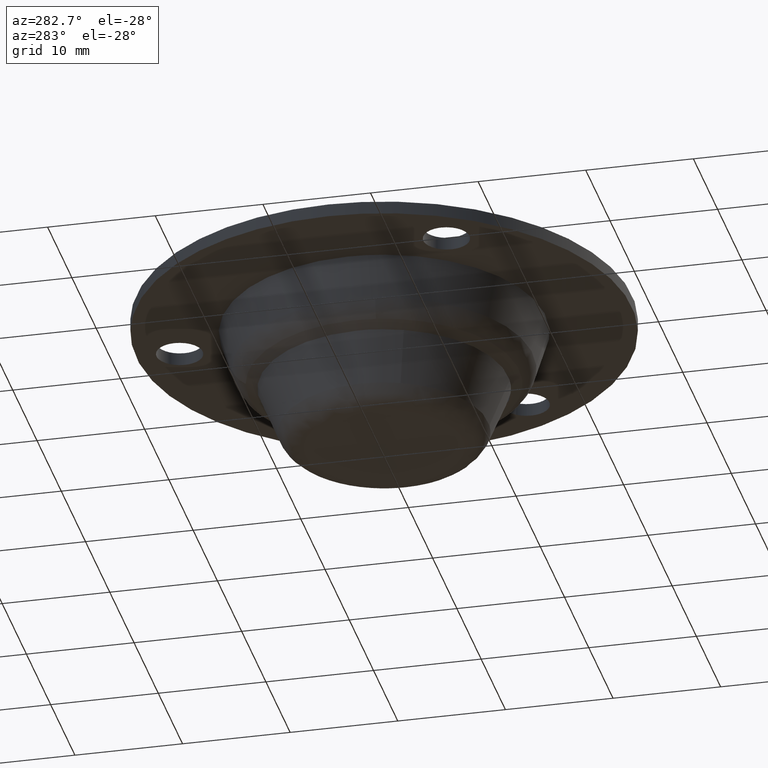
[diagram: clean part render]
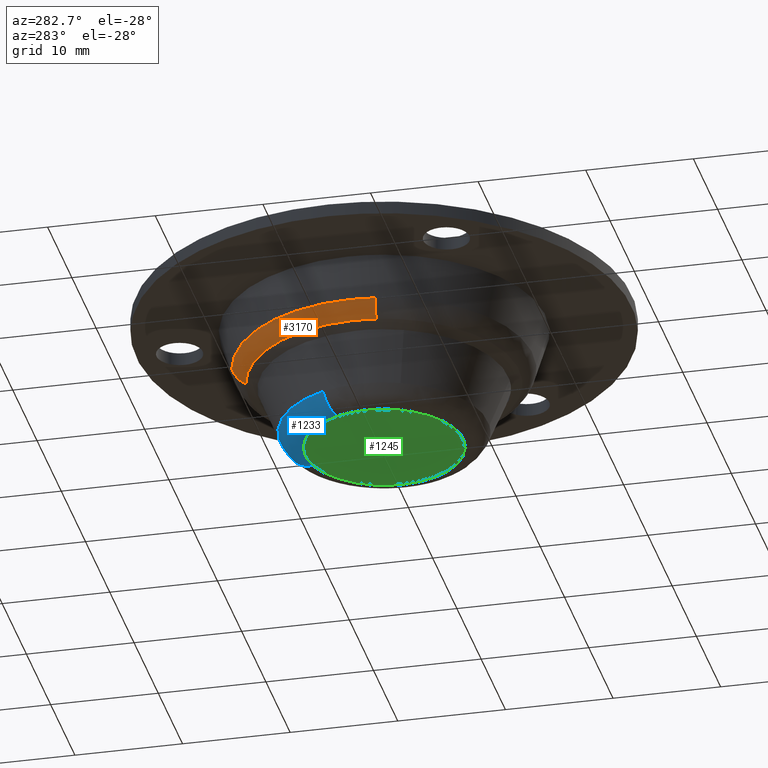
[diagram: same view with three faces highlighted in distinct colors, each labeled with its STEP entity id]
A machine part, auxiliary view with three faces highlighted in distinct colors.
Their STEP definitions:

[orange] entity #3170 — the highlighted face is a freeform B-spline surface patch.
#2086=CARTESIAN_POINT('',(-3.023204054250408,13.482350072375990,8.014868798896041));
#2087=VERTEX_POINT('',#2086);
#2103=CARTESIAN_POINT('',(-13.817146940353620,0.0,8.014871502011490));
#2104=VERTEX_POINT('',#2103);
#2105=CARTESIAN_POINT('',(-13.817146940353620,0.0,8.014871502011490));
#2106=CARTESIAN_POINT('',(-13.817146847939487,11.061979320678134,8.014870150453767));
#2107=CARTESIAN_POINT('',(-3.023204054250407,13.482350072375990,8.014868798896041));
#2115=(BOUNDED_CURVE()B_SPLINE_CURVE(2,(#2105,#2106,#2107),.UNSPECIFIED.,.F.,.U.)B_SPLINE_CURVE_WITH_KNOTS((3,3),(0.0,0.212563972159840),.UNSPECIFIED.)CURVE()GEOMETRIC_REPRESENTATION_ITEM()RATIONAL_B_SPLINE_CURVE((1.0,0.750965815961325,0.925417194825414))REPRESENTATION_ITEM(''));
#2116=EDGE_CURVE('',#2104,#2087,#2115,.T.);
#2118=CARTESIAN_POINT('',(-13.633186390799150,-2.247170324118301,8.014871045845393));
#2119=VERTEX_POINT('',#2118);
#2120=CARTESIAN_POINT('',(-13.633186390799150,-2.247170324118301,8.014871045845393));
#2121=CARTESIAN_POINT('',(-13.817146940353620,-1.131114961520534,8.014871502011491));
#2122=CARTESIAN_POINT('',(-13.817146940353620,0.0,8.014871502011490));
#2130=(BOUNDED_CURVE()B_SPLINE_CURVE(2,(#2120,#2121,#2122),.UNSPECIFIED.,.F.,.U.)B_SPLINE_CURVE_WITH_KNOTS((3,3),(0.972006246325692,1.0),.UNSPECIFIED.)CURVE()GEOMETRIC_REPRESENTATION_ITEM()RATIONAL_B_SPLINE_CURVE((0.941751382001029,0.967203277518644,1.0))REPRESENTATION_ITEM(''));
#2131=EDGE_CURVE('',#2119,#2104,#2130,.T.);
#2373=CARTESIAN_POINT('',(-12.381903161650060,-2.040930695166651,6.524491011444682));
#2374=VERTEX_POINT('',#2373);
#2390=CARTESIAN_POINT('',(-12.548980999999999,0.0,6.524490999999901));
#2391=VERTEX_POINT('',#2390);
#2392=CARTESIAN_POINT('',(-12.381903161650058,-2.040930695166651,6.524491011444683));
#2393=CARTESIAN_POINT('',(-12.548980999999998,-1.027304140377461,6.524490999999900));
#2394=CARTESIAN_POINT('',(-12.548980999999999,0.0,6.524490999999901));
#2402=(BOUNDED_CURVE()B_SPLINE_CURVE(2,(#2392,#2393,#2394),.UNSPECIFIED.,.F.,.U.)B_SPLINE_CURVE_WITH_KNOTS((3,3),(0.972006108796968,1.0),.UNSPECIFIED.)CURVE()GEOMETRIC_REPRESENTATION_ITEM()RATIONAL_B_SPLINE_CURVE((0.941751131919225,0.967203116393722,1.0))REPRESENTATION_ITEM(''));
#2403=EDGE_CURVE('',#2374,#2391,#2402,.T.);
#2405=CARTESIAN_POINT('',(-2.745739527794939,12.244910716029899,6.524491011267107));
#2406=VERTEX_POINT('',#2405);
#2407=CARTESIAN_POINT('',(-12.548980999999999,0.0,6.524490999999901));
#2408=CARTESIAN_POINT('',(-12.548981000000001,10.046679290348280,6.524490999999902));
#2409=CARTESIAN_POINT('',(-2.745739527794939,12.244910716029901,6.524491011267107));
#2417=(BOUNDED_CURVE()B_SPLINE_CURVE(2,(#2407,#2408,#2409),.UNSPECIFIED.,.F.,.U.)B_SPLINE_CURVE_WITH_KNOTS((3,3),(0.0,0.212563823276980),.UNSPECIFIED.)CURVE()GEOMETRIC_REPRESENTATION_ITEM()RATIONAL_B_SPLINE_CURVE((1.0,0.750965990388446,0.925416950449116))REPRESENTATION_ITEM(''));
#2418=EDGE_CURVE('',#2391,#2406,#2417,.T.);
#3106=CARTESIAN_POINT('',(-13.633186390799155,-2.247170324118301,8.014871045845393));
#3107=CARTESIAN_POINT('',(-13.320260640932085,-2.195596011071832,7.000000250884765));
#3108=CARTESIAN_POINT('',(-12.381903161650060,-2.040930695166652,6.524491011444682));
#3116=(BOUNDED_CURVE()B_SPLINE_CURVE(2,(#3106,#3107,#3108),.UNSPECIFIED.,.F.,.U.)B_SPLINE_CURVE_WITH_KNOTS((3,3),(-1.576752214041713,-0.437749465809462),.UNSPECIFIED.)CURVE()GEOMETRIC_REPRESENTATION_ITEM()RATIONAL_B_SPLINE_CURVE((0.924225227446553,0.849635239093327,0.922349759776267))REPRESENTATION_ITEM(''));
#3117=EDGE_CURVE('',#2119,#2374,#3116,.T.);
#3123=CARTESIAN_POINT('',(-3.023204054250408,13.482350072375995,8.014868798896043));
#3124=CARTESIAN_POINT('',(-2.953817664845392,13.172885523791948,6.999999628913513));
#3125=CARTESIAN_POINT('',(-2.745739527794939,12.244910716029903,6.524491011267107));
#3133=(BOUNDED_CURVE()B_SPLINE_CURVE(2,(#3123,#3124,#3125),.UNSPECIFIED.,.F.,.U.)B_SPLINE_CURVE_WITH_KNOTS((3,3),(-1.576750842456388,-0.437749465347705),.UNSPECIFIED.)CURVE()GEOMETRIC_REPRESENTATION_ITEM()RATIONAL_B_SPLINE_CURVE((0.903435345469025,0.830523460337182,0.901602240600924))REPRESENTATION_ITEM(''));
#3134=EDGE_CURVE('',#2087,#2406,#3133,.T.);
#3139=CARTESIAN_POINT('',(-13.644774304818911,-2.344071563469661,8.108229792706380));
#3140=CARTESIAN_POINT('',(-13.652384381035802,-2.297902809676140,8.108229792706382));
#3141=CARTESIAN_POINT('',(-15.786326064103017,10.648278722193881,8.108229792706380));
#3142=CARTESIAN_POINT('',(-2.982316484019872,13.519387873868526,8.108229792706378));
#3143=CARTESIAN_POINT('',(-2.935590201829028,13.529865549285969,8.108229792706378));
#3144=CARTESIAN_POINT('',(-13.341255709591712,-2.291929307968588,6.968892101768585));
#3145=CARTESIAN_POINT('',(-13.348696504910931,-2.246787546266087,6.968892101768585));
#3146=CARTESIAN_POINT('',(-15.435170126764941,10.411415104874351,6.968892101768584));
#3147=CARTESIAN_POINT('',(-2.915976910383029,13.218658413333660,6.968892101768582));
#3148=CARTESIAN_POINT('',(-2.870290022117942,13.228903020086644,6.968892101768583));
#3149=CARTESIAN_POINT('',(-12.281365882328092,-2.109848054809130,6.482619191007780));
#3150=CARTESIAN_POINT('',(-12.288215547139268,-2.068292559276375,6.482619191007781));
#3151=CARTESIAN_POINT('',(-14.208930246835223,9.584285095729749,6.482619191007779));
#3152=CARTESIAN_POINT('',(-2.684318486983758,12.168508270997950,6.482619191007779));
#3153=CARTESIAN_POINT('',(-2.642261172213517,12.177938999753376,6.482619191007778));
#3161=(BOUNDED_SURFACE()B_SPLINE_SURFACE(2,2,((#3139,#3144,#3149),(#3140,#3145,#3150),(#3141,#3146,#3151),(#3142,#3147,#3152),(#3143,#3148,#3153)),.UNSPECIFIED.,.F.,.F.,.U.)B_SPLINE_SURFACE_WITH_KNOTS((3,1,1,3),(3,3),(0.0,0.110072511539095,22.124560861493059,22.234647798164961),(0.0,2.241839478278852),.UNSPECIFIED.)GEOMETRIC_REPRESENTATION_ITEM()RATIONAL_B_SPLINE_SURFACE(((0.934665062859016,0.844277058543763,0.932596411593849),(0.933354712556195,0.843093427376525,0.931288961429183),(0.669974467849544,0.605183712853465,0.668491644124105),(0.912284450964783,0.824060792921643,0.910265333680236),(0.913490131228498,0.825149876302465,0.911468345467187)))REPRESENTATION_ITEM('')SURFACE());
#3162=ORIENTED_EDGE('',*,*,#2116,.T.);
#3163=ORIENTED_EDGE('',*,*,#3134,.T.);
#3164=ORIENTED_EDGE('',*,*,#2418,.F.);
#3165=ORIENTED_EDGE('',*,*,#2403,.F.);
#3166=ORIENTED_EDGE('',*,*,#3117,.F.);
#3167=ORIENTED_EDGE('',*,*,#2131,.T.);
#3168=EDGE_LOOP('',(#3162,#3163,#3164,#3165,#3166,#3167));
#3169=FACE_OUTER_BOUND('',#3168,.T.);
#3170=ADVANCED_FACE('',(#3169),#3161,.T.);

[blue] entity #1233 — the highlighted face is a freeform B-spline surface patch.
#788=CARTESIAN_POINT('',(2.607179564645315,9.281809758034450,1.538462619229839));
#789=VERTEX_POINT('',#788);
#803=CARTESIAN_POINT('',(-8.918692761812462,3.661459870931855,1.538461536281484));
#804=VERTEX_POINT('',#803);
#805=CARTESIAN_POINT('',(-8.918692761812462,3.661459870931856,1.538461536281484));
#806=CARTESIAN_POINT('',(-6.463855502204131,9.641025470323168,1.538461943958618));
#807=CARTESIAN_POINT('',(0.000000101218430,9.641025667146412,1.538462434619475));
#808=CARTESIAN_POINT('',(1.328336140274691,9.641025707594007,1.538462535451323));
#809=CARTESIAN_POINT('',(2.607179564645315,9.281809758034450,1.538462619229839));
#817=(BOUNDED_CURVE()B_SPLINE_CURVE(2,(#805,#806,#807,#808,#809),.UNSPECIFIED.,.F.,.U.)B_SPLINE_CURVE_WITH_KNOTS((3,2,3),(0.064479943448224,0.250000000000000,0.296082488647767),.UNSPECIFIED.)CURVE()GEOMETRIC_REPRESENTATION_ITEM()RATIONAL_B_SPLINE_CURVE((0.887882137081967,0.782649733928387,1.0,0.946011006276084,0.911925590075263))REPRESENTATION_ITEM(''));
#818=EDGE_CURVE('',#804,#789,#817,.T.);
#1118=CARTESIAN_POINT('',(-6.783899208498300,2.785046573940497,-9.955442E-014));
#1119=VERTEX_POINT('',#1118);
#1120=CARTESIAN_POINT('',(-8.918692761812462,3.661459870931855,1.538461536281484));
#1121=CARTESIAN_POINT('',(-8.325694551552051,3.418011732446727,1.082197E-010));
#1122=CARTESIAN_POINT('',(-6.783899208498300,2.785046573940497,-9.955442E-014));
#1130=(BOUNDED_CURVE()B_SPLINE_CURVE(2,(#1120,#1121,#1122),.UNSPECIFIED.,.F.,.U.)B_SPLINE_CURVE_WITH_KNOTS((3,3),(-1.667168996469439,-0.341592569075316),.UNSPECIFIED.)CURVE()GEOMETRIC_REPRESENTATION_ITEM()RATIONAL_B_SPLINE_CURVE((0.904195696001551,0.751501598599326,0.902190447931323))REPRESENTATION_ITEM(''));
#1131=EDGE_CURVE('',#804,#1119,#1130,.T.);
#1165=CARTESIAN_POINT('',(1.983121482625533,7.060099296664240,-9.960317E-014));
#1166=VERTEX_POINT('',#1165);
#1180=CARTESIAN_POINT('',(2.607179564645316,9.281809758034450,1.538462619229839));
#1181=CARTESIAN_POINT('',(2.433830521633264,8.664668384485745,4.290993E-010));
#1182=CARTESIAN_POINT('',(1.983121482625533,7.060099296664240,-9.960317E-014));
#1190=(BOUNDED_CURVE()B_SPLINE_CURVE(2,(#1180,#1181,#1182),.UNSPECIFIED.,.F.,.U.)B_SPLINE_CURVE_WITH_KNOTS((3,3),(-1.667169557857606,-0.341592569305008),.UNSPECIFIED.)CURVE()GEOMETRIC_REPRESENTATION_ITEM()RATIONAL_B_SPLINE_CURVE((0.865212433389023,0.719101386457049,0.863293515539725))REPRESENTATION_ITEM(''));
#1191=EDGE_CURVE('',#789,#1166,#1190,.T.);
#1196=CARTESIAN_POINT('',(-8.964267399839624,3.680169979299773,1.666484169927164));
#1197=CARTESIAN_POINT('',(-5.687106575640708,11.662775702850478,1.666484169927164));
#1198=CARTESIAN_POINT('',(2.620503446341624,9.329239131894862,1.666484169927164));
#1199=CARTESIAN_POINT('',(-8.386640069708268,3.443032167055291,-0.099178592621777));
#1200=CARTESIAN_POINT('',(-5.320648499265322,10.911265546953199,-0.099178592621777));
#1201=CARTESIAN_POINT('',(2.451646991955020,8.728094247259913,-0.099178592621777));
#1202=CARTESIAN_POINT('',(-6.656757556019071,2.732850128676060,0.003780752551981));
#1203=CARTESIAN_POINT('',(-4.223177196829195,8.660637486728088,0.003780752551981));
#1204=CARTESIAN_POINT('',(1.945954458846320,6.927781190938257,0.003780752551981));
#1212=(BOUNDED_SURFACE()B_SPLINE_SURFACE(2,2,((#1196,#1199,#1202),(#1197,#1200,#1203),(#1198,#1201,#1204)),.UNSPECIFIED.,.F.,.F.,.U.)B_SPLINE_SURFACE_WITH_KNOTS((3,3),(3,3),(0.0,14.754766235616380),(0.0,3.330229754910149),.UNSPECIFIED.)GEOMETRIC_REPRESENTATION_ITEM()RATIONAL_B_SPLINE_SURFACE(((0.920206931278717,0.735590589192988,0.918001232967664),(0.672246350808178,0.537377053427179,0.670635003848937),(0.880533238403431,0.703876423470458,0.878422636308668)))REPRESENTATION_ITEM('')SURFACE());
#1213=ORIENTED_EDGE('',*,*,#818,.T.);
#1214=ORIENTED_EDGE('',*,*,#1191,.T.);
#1215=CARTESIAN_POINT('',(-6.783899208498300,2.785046573940497,-9.955442E-014));
#1216=CARTESIAN_POINT('',(-4.916656028797879,7.333333000000000,0.0));
#1217=CARTESIAN_POINT('',(0.0,7.333333000000000,0.0));
#1218=CARTESIAN_POINT('',(1.010383757808589,7.333333000000000,0.0));
#1219=CARTESIAN_POINT('',(1.983121482625533,7.060099296664241,-9.960317E-014));
#1227=(BOUNDED_CURVE()B_SPLINE_CURVE(2,(#1215,#1216,#1217,#1218,#1219),.UNSPECIFIED.,.F.,.U.)B_SPLINE_CURVE_WITH_KNOTS((3,2,3),(0.064479943448006,0.250000000000000,0.296082510807805),.UNSPECIFIED.)CURVE()GEOMETRIC_REPRESENTATION_ITEM()RATIONAL_B_SPLINE_CURVE((0.887882137082215,0.782649733928131,1.0,0.946010980313985,0.911925557293439))REPRESENTATION_ITEM(''));
#1228=EDGE_CURVE('',#1119,#1166,#1227,.T.);
#1229=ORIENTED_EDGE('',*,*,#1228,.F.);
#1230=ORIENTED_EDGE('',*,*,#1131,.F.);
#1231=EDGE_LOOP('',(#1213,#1214,#1229,#1230));
#1232=FACE_OUTER_BOUND('',#1231,.T.);
#1233=ADVANCED_FACE('',(#1232),#1212,.T.);

[green] entity #1245 — the highlighted face is a freeform B-spline surface patch.
#1118=CARTESIAN_POINT('',(-6.783899208498300,2.785046573940497,-9.955442E-014));
#1119=VERTEX_POINT('',#1118);
#1133=CARTESIAN_POINT('',(-7.333333000000000,0.0,0.0));
#1134=VERTEX_POINT('',#1133);
#1135=CARTESIAN_POINT('',(-7.333333000000000,0.0,0.0));
#1136=CARTESIAN_POINT('',(-7.333333000000001,1.446719416776139,0.0));
#1137=CARTESIAN_POINT('',(-6.783899208498300,2.785046573940497,-9.955442E-014));
#1145=(BOUNDED_CURVE()B_SPLINE_CURVE(2,(#1135,#1136,#1137),.UNSPECIFIED.,.F.,.U.)B_SPLINE_CURVE_WITH_KNOTS((3,3),(0.0,0.064479943448006),.UNSPECIFIED.)CURVE()GEOMETRIC_REPRESENTATION_ITEM()RATIONAL_B_SPLINE_CURVE((1.0,0.924457047258417,0.887882137082215))REPRESENTATION_ITEM(''));
#1146=EDGE_CURVE('',#1134,#1119,#1145,.T.);
#1148=CARTESIAN_POINT('',(7.333333000000000,0.0,0.0));
#1149=VERTEX_POINT('',#1148);
#1150=CARTESIAN_POINT('',(7.333333000000000,0.0,0.0));
#1151=CARTESIAN_POINT('',(7.333332999999999,-7.333332999999999,0.0));
#1152=CARTESIAN_POINT('',(0.0,-7.333333000000000,0.0));
#1153=CARTESIAN_POINT('',(-7.333332999999999,-7.333332999999999,0.0));
#1154=CARTESIAN_POINT('',(-7.333333000000000,0.0,0.0));
#1162=(BOUNDED_CURVE()B_SPLINE_CURVE(2,(#1150,#1151,#1152,#1153,#1154),.UNSPECIFIED.,.F.,.U.)B_SPLINE_CURVE_WITH_KNOTS((3,2,3),(0.500000000000000,0.750000000000000,1.0),.UNSPECIFIED.)CURVE()GEOMETRIC_REPRESENTATION_ITEM()RATIONAL_B_SPLINE_CURVE((1.0,0.707106781186547,1.0,0.707106781186547,1.0))REPRESENTATION_ITEM(''));
#1163=EDGE_CURVE('',#1149,#1134,#1162,.T.);
#1165=CARTESIAN_POINT('',(1.983121482625533,7.060099296664240,-9.960317E-014));
#1166=VERTEX_POINT('',#1165);
#1167=CARTESIAN_POINT('',(1.983121482625533,7.060099296664240,-9.960317E-014));
#1168=CARTESIAN_POINT('',(7.333333000000000,5.557270660187841,0.0));
#1169=CARTESIAN_POINT('',(7.333333000000000,0.0,0.0));
#1177=(BOUNDED_CURVE()B_SPLINE_CURVE(2,(#1167,#1168,#1169),.UNSPECIFIED.,.F.,.U.)B_SPLINE_CURVE_WITH_KNOTS((3,3),(0.296082510807805,0.500000000000000),.UNSPECIFIED.)CURVE()GEOMETRIC_REPRESENTATION_ITEM()RATIONAL_B_SPLINE_CURVE((0.911925557293439,0.761095800872562,1.0))REPRESENTATION_ITEM(''));
#1178=EDGE_CURVE('',#1166,#1149,#1177,.T.);
#1215=CARTESIAN_POINT('',(-6.783899208498300,2.785046573940497,-9.955442E-014));
#1216=CARTESIAN_POINT('',(-4.916656028797879,7.333333000000000,0.0));
#1217=CARTESIAN_POINT('',(0.0,7.333333000000000,0.0));
#1218=CARTESIAN_POINT('',(1.010383757808589,7.333333000000000,0.0));
#1219=CARTESIAN_POINT('',(1.983121482625533,7.060099296664241,-9.960317E-014));
#1227=(BOUNDED_CURVE()B_SPLINE_CURVE(2,(#1215,#1216,#1217,#1218,#1219),.UNSPECIFIED.,.F.,.U.)B_SPLINE_CURVE_WITH_KNOTS((3,2,3),(0.064479943448006,0.250000000000000,0.296082510807805),.UNSPECIFIED.)CURVE()GEOMETRIC_REPRESENTATION_ITEM()RATIONAL_B_SPLINE_CURVE((0.887882137082215,0.782649733928131,1.0,0.946010980313985,0.911925557293439))REPRESENTATION_ITEM(''));
#1228=EDGE_CURVE('',#1119,#1166,#1227,.T.);
#1234=CARTESIAN_POINT('',(8.065932938273154,-8.065878902975930,0.0));
#1235=CARTESIAN_POINT('',(-8.065933331663793,-8.065878902975930,0.0));
#1236=CARTESIAN_POINT('',(8.065932938273154,8.064797508563970,0.0));
#1237=CARTESIAN_POINT('',(-8.065933331663793,8.064797508563970,0.0));
#1238=B_SPLINE_SURFACE_WITH_KNOTS('',1,1,((#1234,#1236),(#1235,#1237)),.UNSPECIFIED.,.F.,.F.,.U.,(2,2),(2,2),(0.0,16.131866269936950),(0.0,16.130676411539898),.UNSPECIFIED.);
#1239=ORIENTED_EDGE('',*,*,#1146,.T.);
#1240=ORIENTED_EDGE('',*,*,#1228,.T.);
#1241=ORIENTED_EDGE('',*,*,#1178,.T.);
#1242=ORIENTED_EDGE('',*,*,#1163,.T.);
#1243=EDGE_LOOP('',(#1239,#1240,#1241,#1242));
#1244=FACE_OUTER_BOUND('',#1243,.T.);
#1245=ADVANCED_FACE('',(#1244),#1238,.T.);